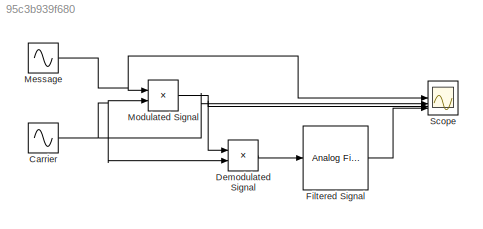
MODEL slx_95c3b939f680
KIND model
CONFIG AbsTol = auto
CONFIG EnableMultiTasking = off
CONFIG FixedStep = auto
CONFIG MaxStep = auto
CONFIG MinStep = auto
CONFIG RelTol = 1e-3
CONFIG SampleTimeConstraint = Unconstrained
CONFIG SolverName = VariableStepAuto
CONFIG StartTime = 0.0
CONFIG StopTime = 10.0
BLOCK [Sin] Carrier
  Amplitude = 3
  Frequency = 2*pi*10
  Phase = pi/2
  SampleTime = 0
BLOCK [Product] Demodulated Signal
BLOCK [Reference] Filtered Signal  REF=dspfdesign/Analog
Filter Design
  SourceBlock = dspfdesign/Analog\nFilter Design
  SourceType = Analog Filter Design
BLOCK [Sin] Message
  Amplitude = 3
  Frequency = 2*pi*1
  SampleTime = 0
BLOCK [Product] Modulated Signal
BLOCK [Scope] Scope
  Floating = off
  NumInputPorts = 4
  ScopeSpecificationString = Simulink.scopes.TimeScopeBlockCfg('CurrentConfiguration', extmgr.ConfigurationSet(extmgr.Configuration('Core','General UI',true,'FigureColor',[1 1 1]),extmgr.Configuration('Core','Source UI',true),extmgr.Configuration('Sources','WiredSimulink',true),extmgr.Configuration('Visuals','Time Domain',true,'SerializedDisplays',{struct('MinYLimReal','-3.74898','MaxYLimReal','3.74848','YLabelReal','','MinYL...<+3885ch>
NET Carrier:1 -> Demodulated Signal:2, Modulated Signal:2, Scope:2
LINE Demodulated Signal:1 -> Filtered Signal:1
LINE Filtered Signal:1 -> Scope:4
NET Message:1 -> Modulated Signal:1, Scope:1
NET Modulated Signal:1 -> Demodulated Signal:1, Scope:3
note: NET lines group one-source signal fan-out (src -> all destinations, sorted); 1:1 wires keep LINE
